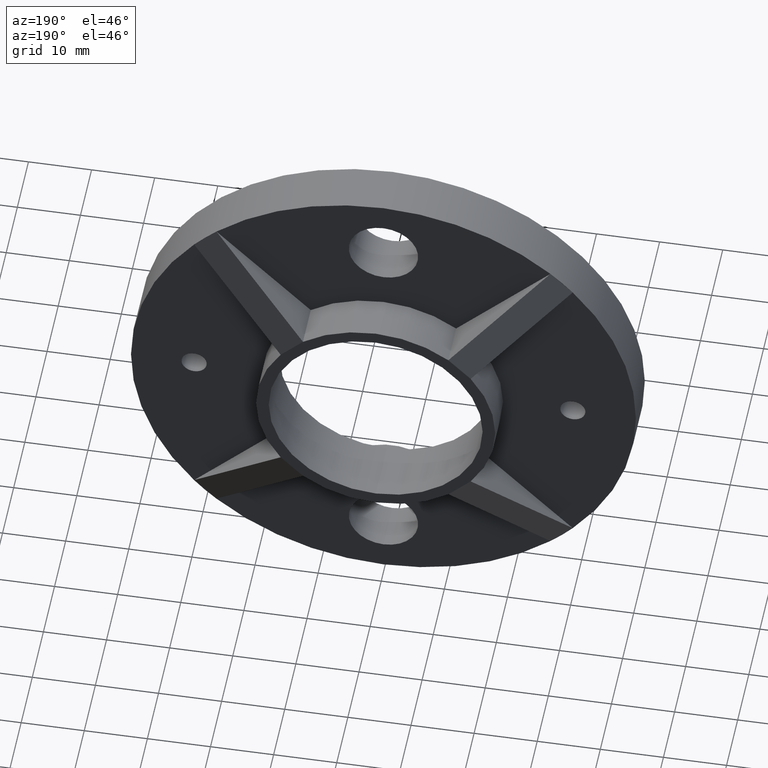
[diagram: clean part render]
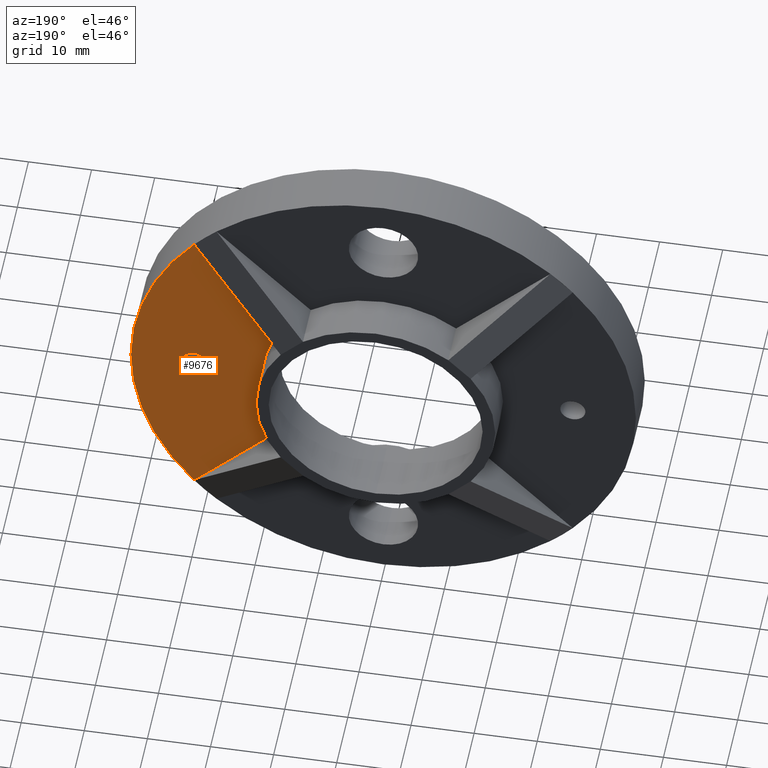
[diagram: same view with one face highlighted and labeled with its STEP entity id]
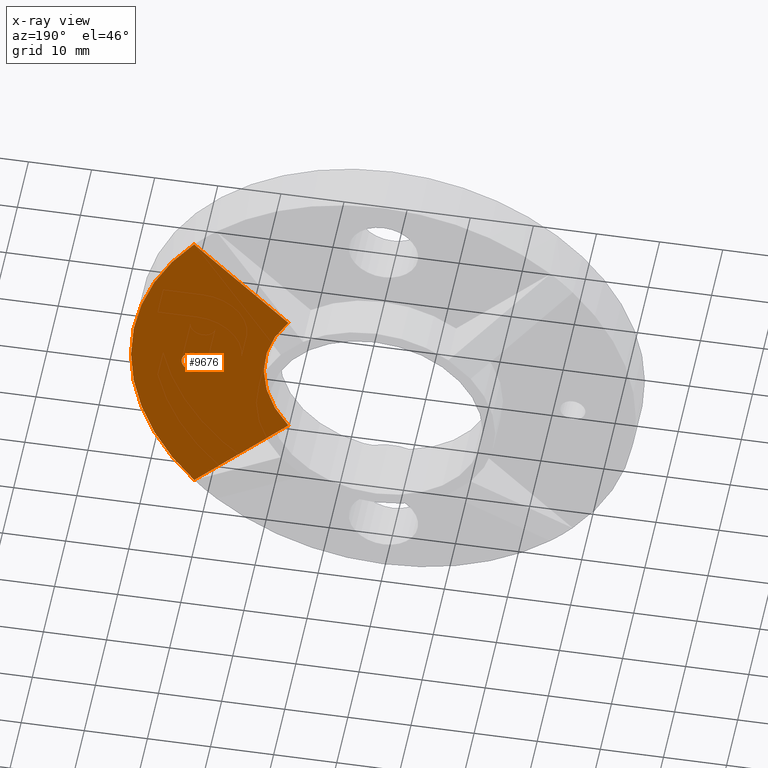
[diagram: x-ray of the same camera — body ghosted, the highlighted face saturated]
A machine part, auxiliary view. The second image highlights one B-rep face of the part: STEP entity #9676.
The next image is the same camera in x-ray: the body ghosted, the highlighted face saturated — about 0% of this face is hidden behind the body in this view.
In plain terms, the highlighted planar face has unit normal (0, 1, 0).
Its self-contained STEP definition (entity closure, byte-faithful):
#252 = CARTESIAN_POINT ( 'NONE',  ( 15.05032130068127927, 8.000000000000000000, -11.51478739474850954 ) ) ;
#290 = DIRECTION ( 'NONE',  ( 0.7071067811865484609, 0.000000000000000000, -0.7071067811865465735 ) ) ;
#356 = ORIENTED_EDGE ( 'NONE', *, *, #358, .F. ) ;
#358 = EDGE_CURVE ( 'NONE', #4937, #6810, #4287, .T. ) ;
#484 = DIRECTION ( 'NONE',  ( 0.000000000000000000, 0.000000000000000000, 1.000000000000000000 ) ) ;
#551 = EDGE_LOOP ( 'NONE', ( #5732 ) ) ;
#580 = DIRECTION ( 'NONE',  ( 0.000000000000000000, 1.000000000000000000, -0.000000000000000000 ) ) ;
#595 = AXIS2_PLACEMENT_3D ( 'NONE', #5460, #6492, #3529 ) ;
#683 = EDGE_CURVE ( 'NONE', #9724, #4937, #8153, .T. ) ;
#733 = FACE_BOUND ( 'NONE', #551, .T. ) ;
#1760 = ORIENTED_EDGE ( 'NONE', *, *, #683, .F. ) ;
#2148 = ORIENTED_EDGE ( 'NONE', *, *, #2755, .T. ) ;
#2377 = CARTESIAN_POINT ( 'NONE',  ( 0.000000000000000000, 8.000000000000000000, 0.000000000000000000 ) ) ;
#2505 = VERTEX_POINT ( 'NONE', #7922 ) ;
#2755 = EDGE_CURVE ( 'NONE', #2505, #6810, #10702, .T. ) ;
#2760 = EDGE_CURVE ( 'NONE', #10498, #10498, #2901, .T. ) ;
#2901 = CIRCLE ( 'NONE', #10268, 2.000000000000003109 ) ;
#3021 = FACE_OUTER_BOUND ( 'NONE', #8950, .T. ) ;
#3122 = ORIENTED_EDGE ( 'NONE', *, *, #5536, .F. ) ;
#3474 = CARTESIAN_POINT ( 'NONE',  ( 15.05032130068127927, 8.000000000000000000, -11.51478739474850954 ) ) ;
#3529 = DIRECTION ( 'NONE',  ( 0.000000000000000000, -0.000000000000000000, 1.000000000000000000 ) ) ;
#4287 = LINE ( 'NONE', #252, #10751 ) ;
#4937 = VERTEX_POINT ( 'NONE', #3474 ) ;
#5388 = CARTESIAN_POINT ( 'NONE',  ( 30.00000000000000000, 8.000000000000000000, 0.000000000000000000 ) ) ;
#5390 = CARTESIAN_POINT ( 'NONE',  ( 30.00000000000000000, 8.000000000000000000, -2.000000000000003109 ) ) ;
#5460 = CARTESIAN_POINT ( 'NONE',  ( 0.000000000000000000, 8.000000000000000000, 0.000000000000000000 ) ) ;
#5536 = EDGE_CURVE ( 'NONE', #2505, #9724, #9470, .T. ) ;
#5732 = ORIENTED_EDGE ( 'NONE', *, *, #2760, .F. ) ;
#6125 = DIRECTION ( 'NONE',  ( 0.000000000000000000, 1.000000000000000000, 0.000000000000000000 ) ) ;
#6223 = VECTOR ( 'NONE', #11792, 1000.000000000000114 ) ;
#6352 = DIRECTION ( 'NONE',  ( 0.000000000000000000, 1.000000000000000000, 0.000000000000000000 ) ) ;
#6492 = DIRECTION ( 'NONE',  ( 0.000000000000000000, 1.000000000000000000, 0.000000000000000000 ) ) ;
#6810 = VERTEX_POINT ( 'NONE', #7916 ) ;
#7916 = CARTESIAN_POINT ( 'NONE',  ( 29.99674142955686307, 8.000000000000000000, -26.46120752362421769 ) ) ;
#7922 = CARTESIAN_POINT ( 'NONE',  ( 29.99674142955688438, 8.000000000000000000, 26.46120752362420703 ) ) ;
#8153 = CIRCLE ( 'NONE', #11750, 18.95000000000000284 ) ;
#8950 = EDGE_LOOP ( 'NONE', ( #2148, #356, #1760, #3122 ) ) ;
#8970 = AXIS2_PLACEMENT_3D ( 'NONE', #11987, #6125, #10247 ) ;
#9314 = DIRECTION ( 'NONE',  ( 0.000000000000000000, 0.000000000000000000, -1.000000000000000000 ) ) ;
#9470 = LINE ( 'NONE', #9951, #6223 ) ;
#9676 = ADVANCED_FACE ( 'NONE', ( #733, #3021 ), #10258, .T. ) ;
#9724 = VERTEX_POINT ( 'NONE', #12312 ) ;
#9951 = CARTESIAN_POINT ( 'NONE',  ( 15.05032130068124552, 8.000000000000000000, 11.51478739474855395 ) ) ;
#10247 = DIRECTION ( 'NONE',  ( 0.000000000000000000, 0.000000000000000000, 1.000000000000000000 ) ) ;
#10258 = PLANE ( 'NONE',  #595 ) ;
#10268 = AXIS2_PLACEMENT_3D ( 'NONE', #5388, #580, #9314 ) ;
#10498 = VERTEX_POINT ( 'NONE', #5390 ) ;
#10702 = CIRCLE ( 'NONE', #8970, 40.00000000000000000 ) ;
#10751 = VECTOR ( 'NONE', #290, 1000.000000000000000 ) ;
#11750 = AXIS2_PLACEMENT_3D ( 'NONE', #2377, #6352, #484 ) ;
#11792 = DIRECTION ( 'NONE',  ( -0.7071067811865465735, -0.000000000000000000, -0.7071067811865483499 ) ) ;
#11987 = CARTESIAN_POINT ( 'NONE',  ( 0.000000000000000000, 8.000000000000000000, 0.000000000000000000 ) ) ;
#12312 = CARTESIAN_POINT ( 'NONE',  ( 15.05032130068124552, 8.000000000000000000, 11.51478739474855395 ) ) ;